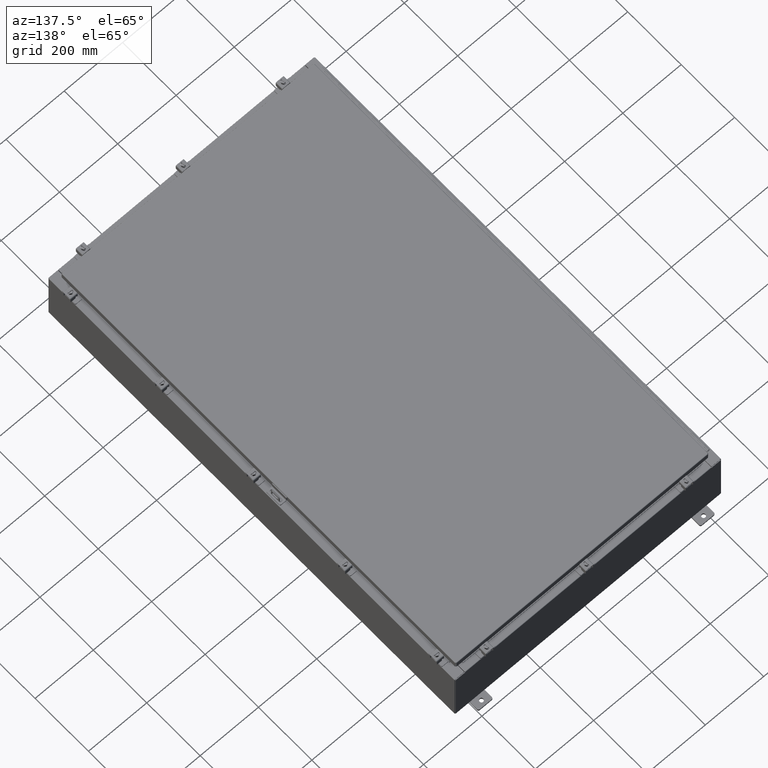
[diagram: clean part render]
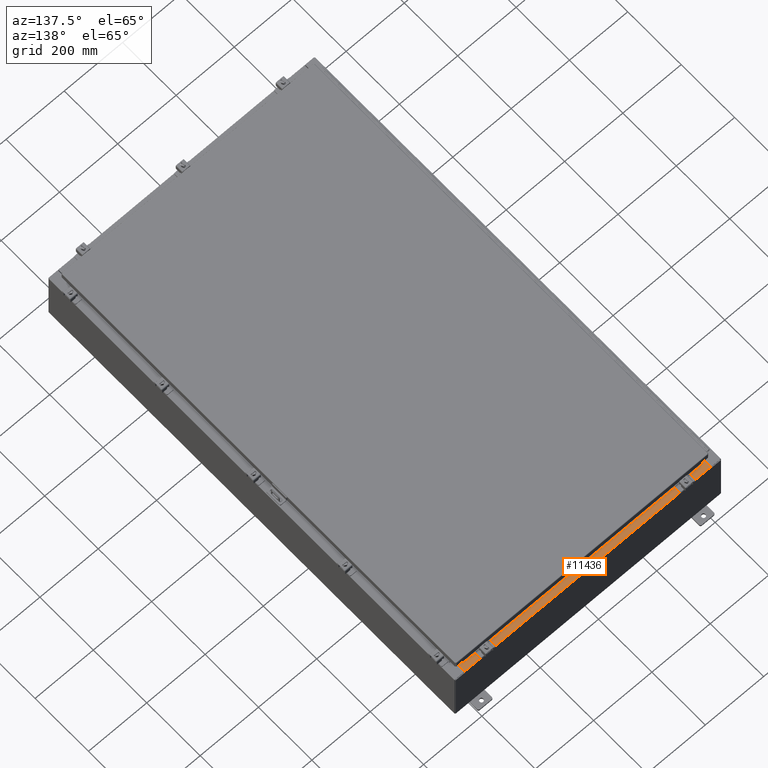
[diagram: same view with one face highlighted and labeled with its STEP entity id]
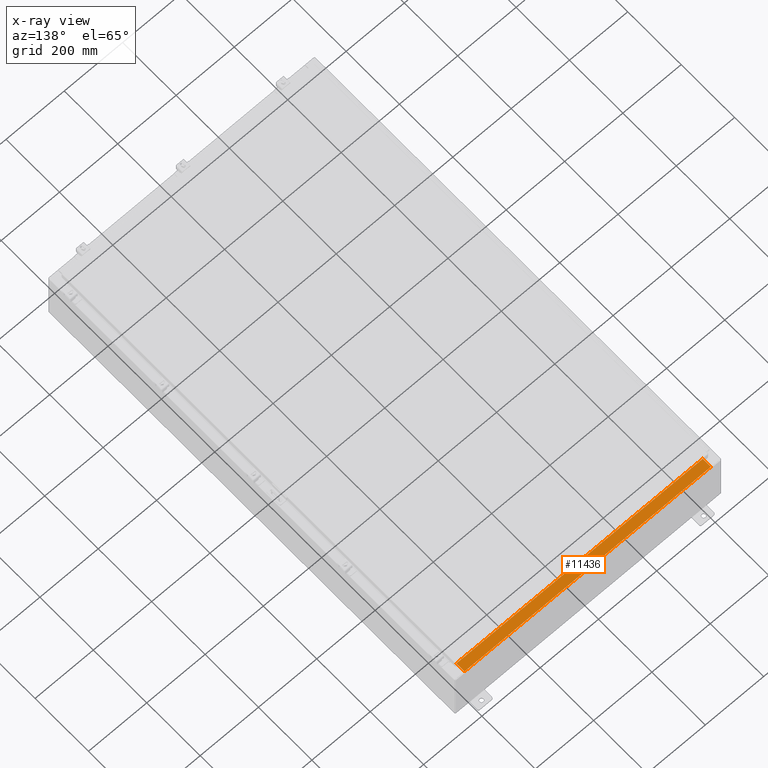
[diagram: x-ray of the same camera — body ghosted, the highlighted face saturated]
A machine part, auxiliary view. The second image highlights one B-rep face of the part: STEP entity #11436.
The next image is the same camera in x-ray: the body ghosted, the highlighted face saturated — about 0% of this face is hidden behind the body in this view.
In plain terms, the highlighted planar face has unit normal (0, 0, 1).
Its self-contained STEP definition (entity closure, byte-faithful):
#758 = EDGE_CURVE ( 'NONE', #53225, #42425, #58823, .T. ) ;
#6705 = ORIENTED_EDGE ( 'NONE', *, *, #43963, .F. ) ;
#8472 = LINE ( 'NONE', #26579, #59990 ) ;
#9318 = LINE ( 'NONE', #52604, #19592 ) ;
#9640 = ORIENTED_EDGE ( 'NONE', *, *, #32359, .F. ) ;
#9812 = EDGE_CURVE ( 'NONE', #51814, #46574, #9318, .T. ) ;
#10082 = EDGE_LOOP ( 'NONE', ( #9640, #31219, #6705, #55404 ) ) ;
#10090 = CARTESIAN_POINT ( 'NONE',  ( -16.63719999999999600, -1.287299999999999200, 4.000000000000004400 ) ) ;
#11103 = CARTESIAN_POINT ( 'NONE',  ( 16.63720000000000700, -0.08769999999999937600, 4.000000000000000900 ) ) ;
#11436 = ADVANCED_FACE ( 'NONE', ( #45185 ), #27334, .T. ) ;
#19150 = VECTOR ( 'NONE', #23784, 39.37007874015748100 ) ;
#19592 = VECTOR ( 'NONE', #26721, 39.37007874015748100 ) ;
#23784 = DIRECTION ( 'NONE',  ( -1.000000000000000000, 3.284023746380717400E-017, -1.171208052571274300E-031 ) ) ;
#25659 = CARTESIAN_POINT ( 'NONE',  ( -2.880088825576348200E-018, -0.08769999999999972300, 4.000000000000000900 ) ) ;
#26579 = CARTESIAN_POINT ( 'NONE',  ( 16.63720000000000400, -1.300299999999999800, 4.000000000000004400 ) ) ;
#26721 = DIRECTION ( 'NONE',  ( -1.000000000000000000, 0.0000000000000000000, 0.0000000000000000000 ) ) ;
#27334 = PLANE ( 'NONE',  #43303 ) ;
#31219 = ORIENTED_EDGE ( 'NONE', *, *, #9812, .F. ) ;
#32359 = EDGE_CURVE ( 'NONE', #46574, #42425, #50826, .T. ) ;
#34811 = CARTESIAN_POINT ( 'NONE',  ( 0.0000000000000000000, 1.425992975200418500E-014, 4.000000000000000900 ) ) ;
#37602 = VECTOR ( 'NONE', #40655, 39.37007874015748100 ) ;
#40513 = DIRECTION ( 'NONE',  ( 0.0000000000000000000, -1.000000000000000000, 3.566381192773190000E-015 ) ) ;
#40655 = DIRECTION ( 'NONE',  ( -0.0000000000000000000, 1.000000000000000000, -3.566381192773190000E-015 ) ) ;
#42425 = VERTEX_POINT ( 'NONE', #55510 ) ;
#43303 = AXIS2_PLACEMENT_3D ( 'NONE', #34811, #53315, #40513 ) ;
#43963 = EDGE_CURVE ( 'NONE', #53225, #51814, #8472, .T. ) ;
#45185 = FACE_OUTER_BOUND ( 'NONE', #10082, .T. ) ;
#46574 = VERTEX_POINT ( 'NONE', #10090 ) ;
#46690 = DIRECTION ( 'NONE',  ( -0.0000000000000000000, -1.000000000000000000, 3.566381192773190000E-015 ) ) ;
#50826 = LINE ( 'NONE', #60332, #37602 ) ;
#51814 = VERTEX_POINT ( 'NONE', #57938 ) ;
#52604 = CARTESIAN_POINT ( 'NONE',  ( 16.63720000000000700, -1.287299999999999900, 4.000000000000004400 ) ) ;
#53225 = VERTEX_POINT ( 'NONE', #11103 ) ;
#53315 = DIRECTION ( 'NONE',  ( 0.0000000000000000000, 3.566381192773190000E-015, 1.000000000000000000 ) ) ;
#55404 = ORIENTED_EDGE ( 'NONE', *, *, #758, .T. ) ;
#55510 = CARTESIAN_POINT ( 'NONE',  ( -16.63719999999999600, -0.08769999999999972300, 4.000000000000000900 ) ) ;
#57938 = CARTESIAN_POINT ( 'NONE',  ( 16.63720000000000400, -1.287299999999999900, 4.000000000000004400 ) ) ;
#58823 = LINE ( 'NONE', #25659, #19150 ) ;
#59990 = VECTOR ( 'NONE', #46690, 39.37007874015748100 ) ;
#60332 = CARTESIAN_POINT ( 'NONE',  ( -16.63719999999999600, -0.07469999999999973900, 4.000000000000000900 ) ) ;